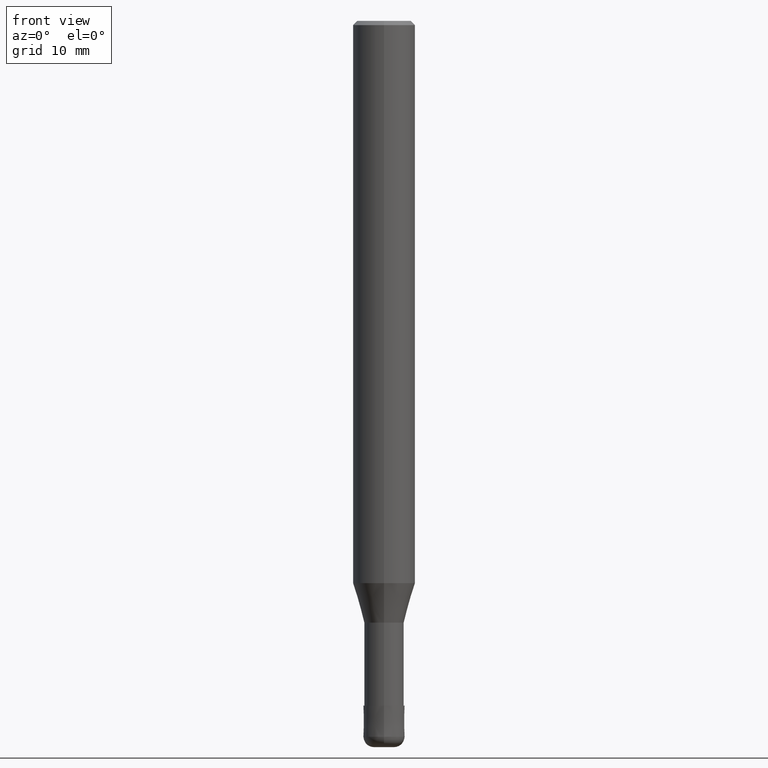
[diagram: clean part render]
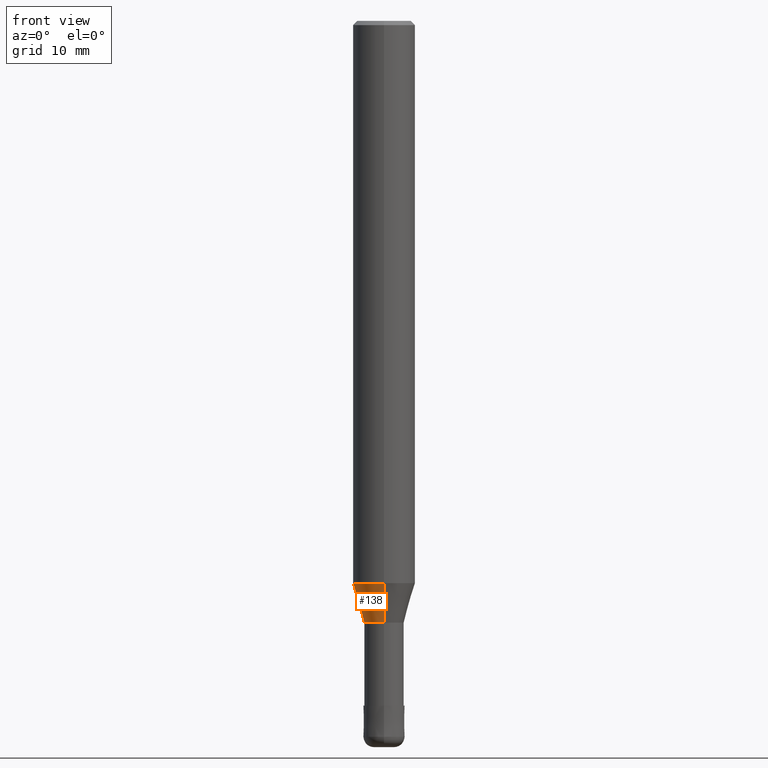
[diagram: same view with one face highlighted and labeled with its STEP entity id]
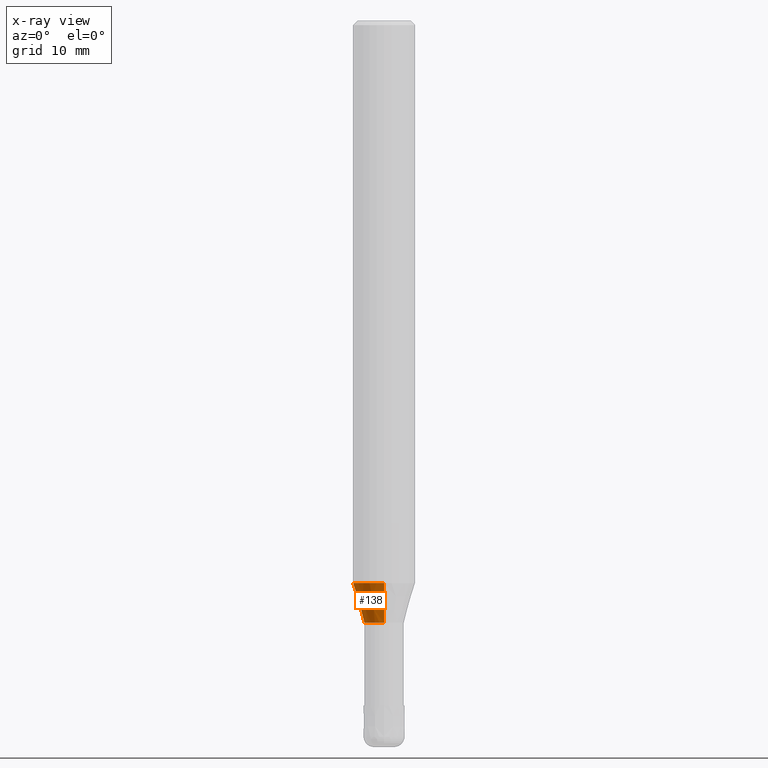
[diagram: x-ray of the same camera — body ghosted, the highlighted face saturated]
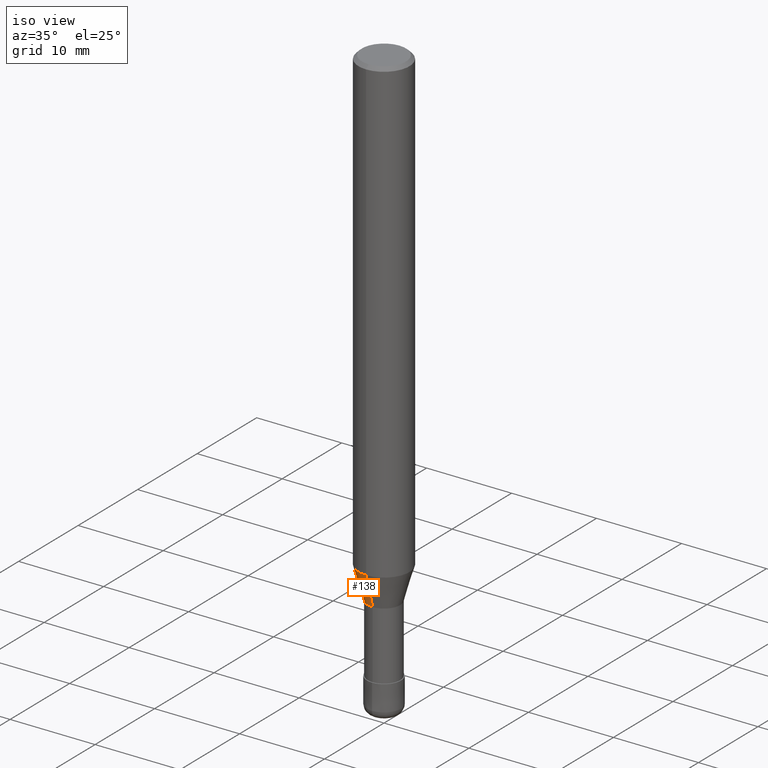
[diagram: same view with one face highlighted and labeled with its STEP entity id]
A machine part, front view. The second image highlights one B-rep face of the part: STEP entity #138.
The next image is the same camera in x-ray: the body ghosted, the highlighted face saturated — about 0% of this face is hidden behind the body in this view.
A second angle (iso view) of the same face is appended — the face is thin or edge-on in the first view.
In plain terms, the highlighted conical surface has half-angle 16.001 deg.
Its self-contained STEP definition (entity closure, byte-faithful):
#138=ADVANCED_FACE('',(#296),#297,.T.);
#142=VERTEX_POINT('',#301);
#144=VERTEX_POINT('',#303);
#150=EDGE_CURVE('',#142,#158,#310,.T.);
#158=VERTEX_POINT('',#318);
#182=VERTEX_POINT('',#346);
#192=EDGE_CURVE('',#182,#158,#357,.T.);
#198=EDGE_CURVE('',#144,#142,#363,.T.);
#224=EDGE_CURVE('',#182,#144,#395,.T.);
#296=FACE_OUTER_BOUND('',#473,.T.);
#297=CONICAL_SURFACE('',#474,2.45495,0.279272319969089);
#301=CARTESIAN_POINT('',(0.0,2.99995,-54.199));
#303=CARTESIAN_POINT('',(3.67375783114944E-016,-2.99995,-54.199));
#310=LINE('',#489,#490);
#318=CARTESIAN_POINT('',(0.0,1.90995,-58.0));
#346=CARTESIAN_POINT('',(2.33893690548305E-016,-1.90995,-58.0));
#357=CIRCLE('',#548,1.90995);
#363=CIRCLE('',#556,2.99995);
#395=LINE('',#593,#594);
#473=EDGE_LOOP('',(#670,#671,#672,#673));
#474=AXIS2_PLACEMENT_3D('',#674,#675,#676);
#489=CARTESIAN_POINT('',(-3.00634736831625E-016,2.45495,-56.0995));
#490=VECTOR('',#688,1.0);
#548=AXIS2_PLACEMENT_3D('',#739,#740,#741);
#556=AXIS2_PLACEMENT_3D('',#745,#746,#747);
#593=CARTESIAN_POINT('',(3.00634736831625E-016,-2.45495,-56.0995));
#594=VECTOR('',#799,1.0);
#670=ORIENTED_EDGE('',*,*,#150,.T.);
#671=ORIENTED_EDGE('',*,*,#192,.F.);
#672=ORIENTED_EDGE('',*,*,#224,.T.);
#673=ORIENTED_EDGE('',*,*,#198,.T.);
#674=CARTESIAN_POINT('',(0.0,0.0,-56.0995));
#675=DIRECTION('',(-0.0,-0.0,1.0));
#676=DIRECTION('',(0.0,1.0,0.0));
#688=DIRECTION('',(3.37570376370609E-017,-0.275656234607102,-0.961256282331738));
#739=CARTESIAN_POINT('',(0.0,0.0,-58.0));
#740=DIRECTION('',(0.0,0.0,-1.0));
#741=DIRECTION('',(0.0,1.0,0.0));
#745=CARTESIAN_POINT('',(0.0,0.0,-54.199));
#746=DIRECTION('',(0.0,0.0,-1.0));
#747=DIRECTION('',(0.0,1.0,0.0));
#799=DIRECTION('',(3.37570376370609E-017,-0.275656234607102,0.961256282331738));